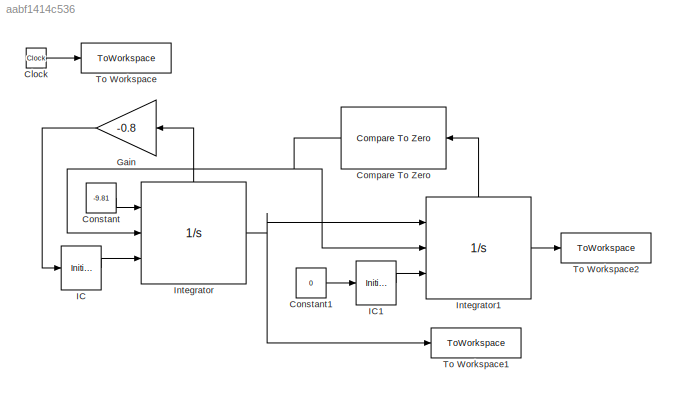
MODEL slx_aabf1414c536
KIND model
CONFIG AbsTol = auto
CONFIG EnableMultiTasking = off
CONFIG FixedStep = 0.001
CONFIG MaxStep = 1e-4
CONFIG MinStep = auto
CONFIG RelTol = 1e-3
CONFIG SampleTimeConstraint = Unconstrained
CONFIG SolverName = ode1
CONFIG StartTime = 0.0
CONFIG StopTime = 18
BLOCK [Clock] Clock
BLOCK [Reference] Compare To Zero  REF=simulink/Logic and Bit
Operations/Compare
To Zero
  NameLocation = top
  Ports = [1, 1]
  SourceBlock = simulink/Logic and Bit\nOperations/Compare\nTo Zero
  SourceProductBaseCode = SL
  SourceType = Compare To Zero
BLOCK [Constant] Constant
  AttributesFormatString = Gravidade
  Description = Gravidade
  Value = -9.81
BLOCK [Constant] Constant1
  AttributesFormatString = Pavimento
  Description = Pavimento
  Value = 0
BLOCK [Gain] Gain
  AttributesFormatString = Elasticidade da bola
  Description = Elasticidade da bola
  Gain = -0.8
  NameLocation = top
BLOCK [InitialCondition] IC
  AttributesFormatString = Velocidade inicial
  Description = Velocidade inicial
  Value = 0
BLOCK [InitialCondition] IC1
  AttributesFormatString = Posição inicial
  Description = Posição inicial
  Value = 10
BLOCK [Integrator] Integrator
  AttributesFormatString = Velocidade
  ExternalReset = level hold
  InitialConditionSource = external
  Ports = [3, 1, 0, 0, 1]
  ShowStatePort = on
BLOCK [Integrator] Integrator1
  AttributesFormatString = Posição
  ExternalReset = rising
  InitialConditionSource = external
  LimitOutput = on
  Ports = [3, 1, 0, 0, 1]
  ShowStatePort = on
BLOCK [ToWorkspace] To Workspace
  FixptAsFi = on
  MaxDataPoints = inf
  Ports = [1]
  SampleTime = -1
  Save2DSignal = 2-D array (concatenate along first dimension)
  SaveFormat = Timeseries
  VariableName = t
BLOCK [ToWorkspace] To Workspace1
  FixptAsFi = on
  MaxDataPoints = inf
  Ports = [1]
  SampleTime = -1
  Save2DSignal = 2-D array (concatenate along first dimension)
  SaveFormat = Timeseries
  VariableName = v
BLOCK [ToWorkspace] To Workspace2
  FixptAsFi = on
  MaxDataPoints = inf
  Ports = [1]
  SampleTime = -1
  Save2DSignal = 2-D array (concatenate along first dimension)
  SaveFormat = Timeseries
  VariableName = z
LINE Clock:1 -> To Workspace:1
NET Compare To Zero:1 -> Integrator1:2, Integrator:2
LINE Constant1:1 -> IC1:1
LINE Constant:1 -> Integrator:1
LINE Gain:1 -> IC:1
LINE IC1:1 -> Integrator1:3
LINE IC:1 -> Integrator:3
LINE Integrator1:1 -> To Workspace2:1
LINE Integrator1:state -> Compare To Zero:1
NET Integrator:1 -> Integrator1:1, To Workspace1:1
LINE Integrator:state -> Gain:1
note: NET lines group one-source signal fan-out (src -> all destinations, sorted); 1:1 wires keep LINE
